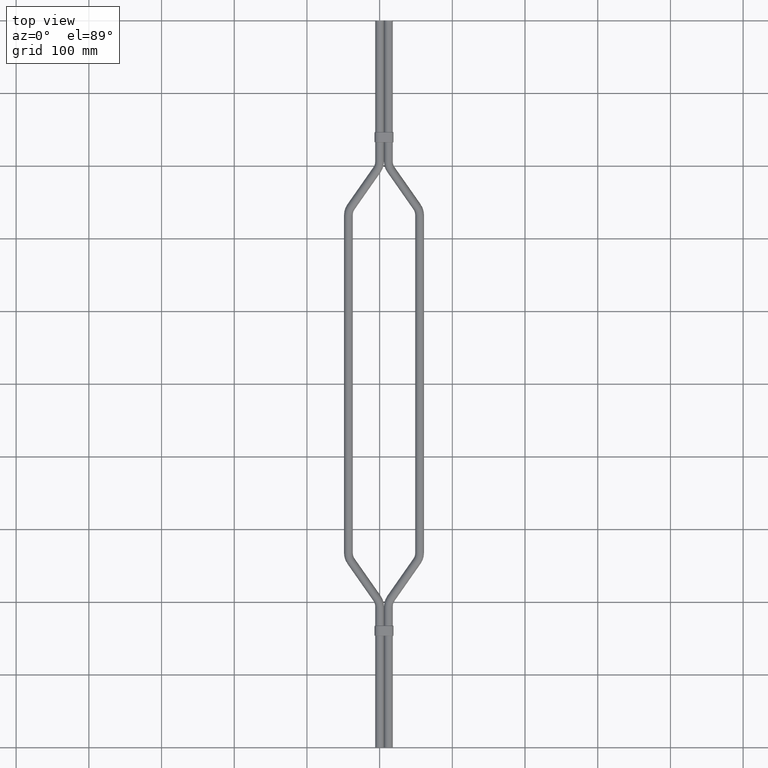
[diagram: clean part render]
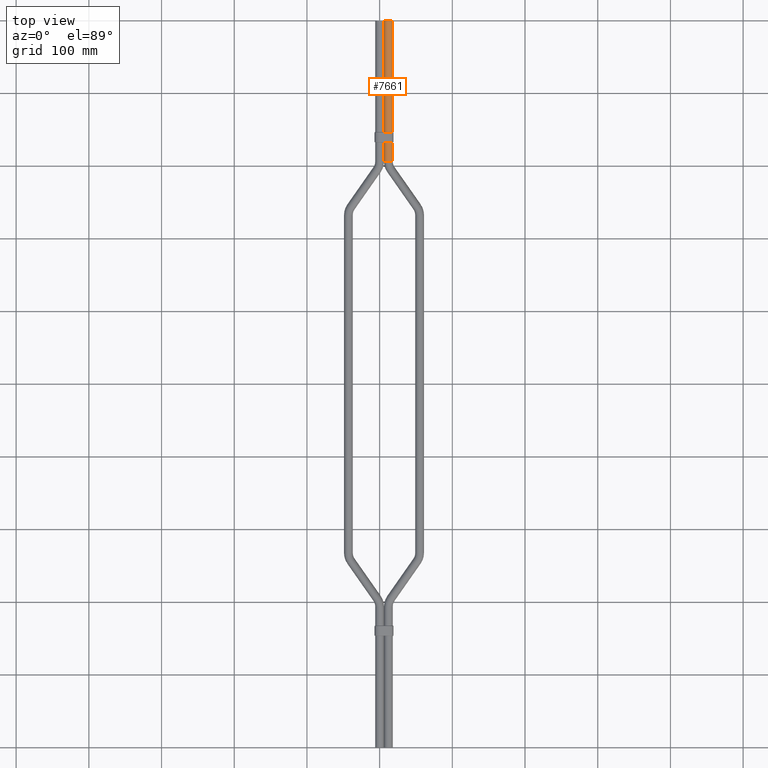
[diagram: same view with one face highlighted and labeled with its STEP entity id]
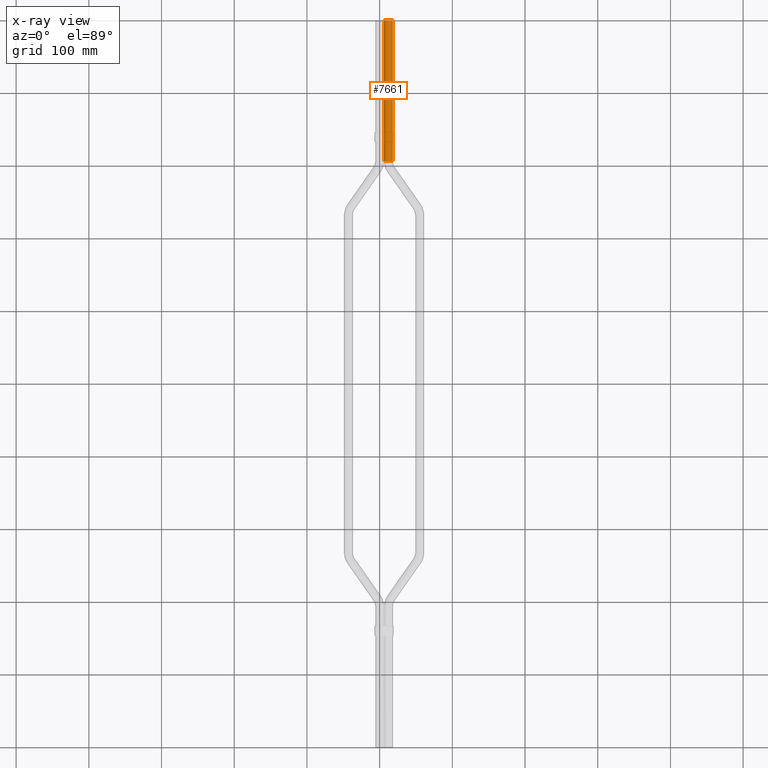
[diagram: x-ray of the same camera — body ghosted, the highlighted face saturated]
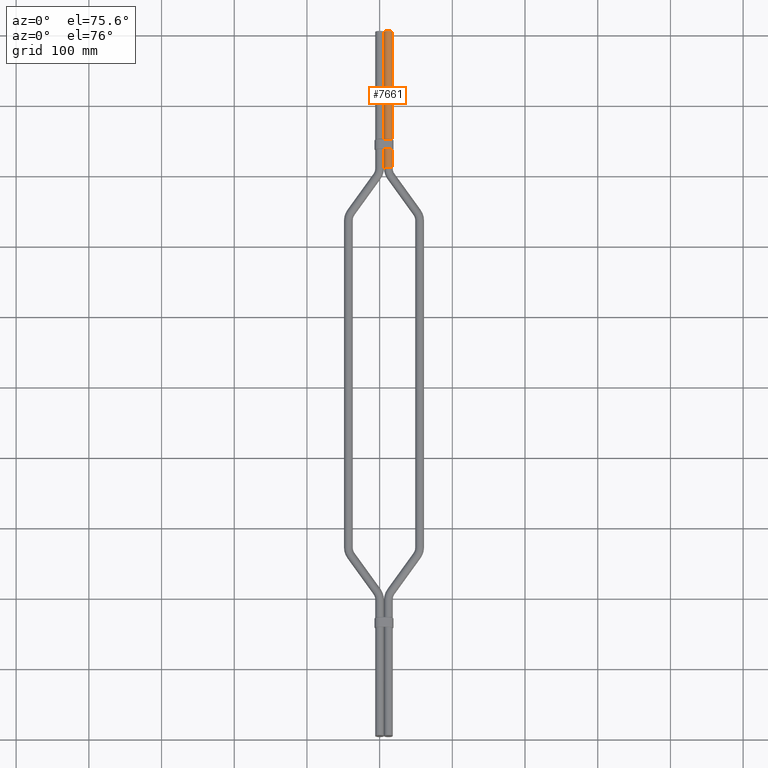
[diagram: same view with one face highlighted and labeled with its STEP entity id]
A machine part, top view. The second image highlights one B-rep face of the part: STEP entity #7661.
The next image is the same camera in x-ray: the body ghosted, the highlighted face saturated — about 0% of this face is hidden behind the body in this view.
A second angle (auxiliary view) of the same face is appended — the face is thin or edge-on in the first view.
In plain terms, the highlighted cylindrical surface (edge-blend (fillet) strip) has radius 6 mm, axis along (-0, 1, 0).
Its self-contained STEP definition (entity closure, byte-faithful):
#165 = VERTEX_POINT ( 'NONE', #3075 ) ;
#423 = LINE ( 'NONE', #3882, #5716 ) ;
#1038 = VERTEX_POINT ( 'NONE', #1237 ) ;
#1237 = CARTESIAN_POINT ( 'NONE',  ( 18.00000000000002800, 1000.000000000000000, 7.347880794884123700E-016 ) ) ;
#1335 = CIRCLE ( 'NONE', #2435, 6.000000000000002700 ) ;
#1526 = CARTESIAN_POINT ( 'NONE',  ( 6.000000000000024900, 1000.000000000000000, 0.0000000000000000000 ) ) ;
#1727 = EDGE_CURVE ( 'NONE', #2101, #1038, #1335, .T. ) ;
#2101 = VERTEX_POINT ( 'NONE', #1526 ) ;
#2435 = AXIS2_PLACEMENT_3D ( 'NONE', #6060, #6047, #6039 ) ;
#2457 = CARTESIAN_POINT ( 'NONE',  ( 18.00000000000007100, 806.3059757799999300, 7.347880794884145400E-016 ) ) ;
#2645 = ORIENTED_EDGE ( 'NONE', *, *, #1727, .F. ) ;
#3075 = CARTESIAN_POINT ( 'NONE',  ( 6.000000000000063100, 806.3059757799999300, 0.0000000000000000000 ) ) ;
#3175 = VECTOR ( 'NONE', #4329, 1000.000000000000000 ) ;
#3325 = DIRECTION ( 'NONE',  ( -1.970319767229510100E-016, 1.000000000000000000, 0.0000000000000000000 ) ) ;
#3502 = CARTESIAN_POINT ( 'NONE',  ( 12.00000000000006600, 806.3059757799999300, 0.0000000000000000000 ) ) ;
#3556 = CYLINDRICAL_SURFACE ( 'NONE', #6658, 6.000000000000002700 ) ;
#3882 = CARTESIAN_POINT ( 'NONE',  ( 6.000000000000063100, 806.3059757799999300, 0.0000000000000000000 ) ) ;
#4129 = DIRECTION ( 'NONE',  ( 0.0000000000000000000, 0.0000000000000000000, 1.000000000000000000 ) ) ;
#4329 = DIRECTION ( 'NONE',  ( -1.970319767229510100E-016, 1.000000000000000000, 0.0000000000000000000 ) ) ;
#4427 = ORIENTED_EDGE ( 'NONE', *, *, #6957, .T. ) ;
#4525 = DIRECTION ( 'NONE',  ( -1.970319767229510100E-016, 1.000000000000000000, 0.0000000000000000000 ) ) ;
#4819 = LINE ( 'NONE', #7166, #3175 ) ;
#5067 = EDGE_CURVE ( 'NONE', #165, #2101, #423, .T. ) ;
#5298 = ORIENTED_EDGE ( 'NONE', *, *, #7140, .T. ) ;
#5716 = VECTOR ( 'NONE', #4525, 1000.000000000000000 ) ;
#5783 = CIRCLE ( 'NONE', #7321, 6.000000000000002700 ) ;
#6039 = DIRECTION ( 'NONE',  ( 0.0000000000000000000, 0.0000000000000000000, 1.000000000000000000 ) ) ;
#6047 = DIRECTION ( 'NONE',  ( -4.218847493575594900E-015, 1.000000000000000000, 0.0000000000000000000 ) ) ;
#6060 = CARTESIAN_POINT ( 'NONE',  ( 12.00000000000002800, 1000.000000000000000, 0.0000000000000000000 ) ) ;
#6658 = AXIS2_PLACEMENT_3D ( 'NONE', #6846, #3325, #7312 ) ;
#6844 = FACE_OUTER_BOUND ( 'NONE', #7343, .T. ) ;
#6846 = CARTESIAN_POINT ( 'NONE',  ( 12.00000000000006600, 806.3059757799999300, 0.0000000000000000000 ) ) ;
#6957 = EDGE_CURVE ( 'NONE', #165, #7135, #5783, .T. ) ;
#7135 = VERTEX_POINT ( 'NONE', #2457 ) ;
#7140 = EDGE_CURVE ( 'NONE', #7135, #1038, #4819, .T. ) ;
#7164 = ORIENTED_EDGE ( 'NONE', *, *, #5067, .F. ) ;
#7166 = CARTESIAN_POINT ( 'NONE',  ( 18.00000000000006800, 806.3059757799999300, 7.347880794884122700E-016 ) ) ;
#7312 = DIRECTION ( 'NONE',  ( -1.000000000000000000, 0.0000000000000000000, 0.0000000000000000000 ) ) ;
#7321 = AXIS2_PLACEMENT_3D ( 'NONE', #3502, #7552, #4129 ) ;
#7343 = EDGE_LOOP ( 'NONE', ( #4427, #5298, #2645, #7164 ) ) ;
#7552 = DIRECTION ( 'NONE',  ( -4.218847493575594900E-015, 1.000000000000000000, 0.0000000000000000000 ) ) ;
#7661 = ADVANCED_FACE ( 'NONE', ( #6844 ), #3556, .T. ) ;